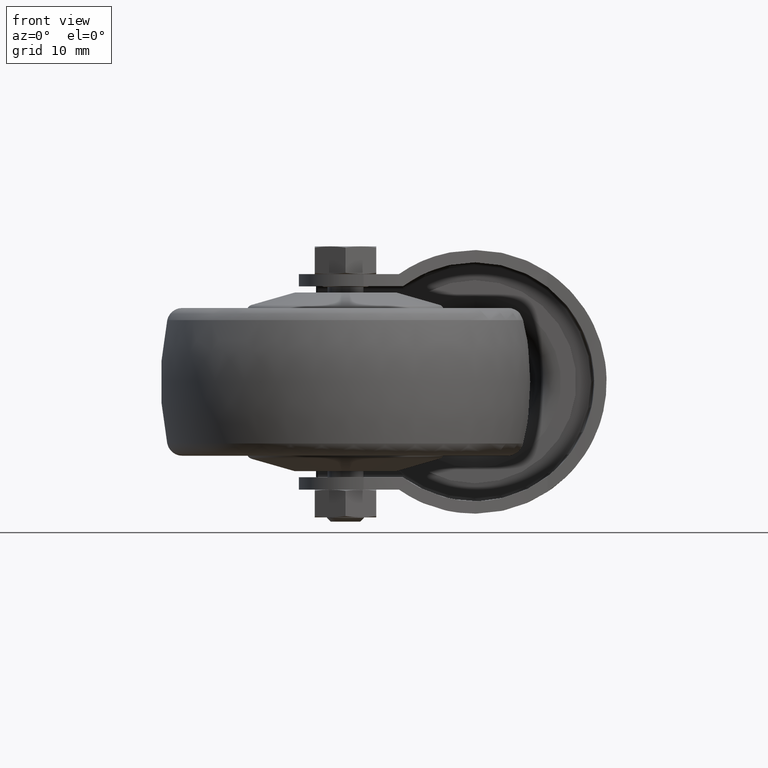
[diagram: clean part render]
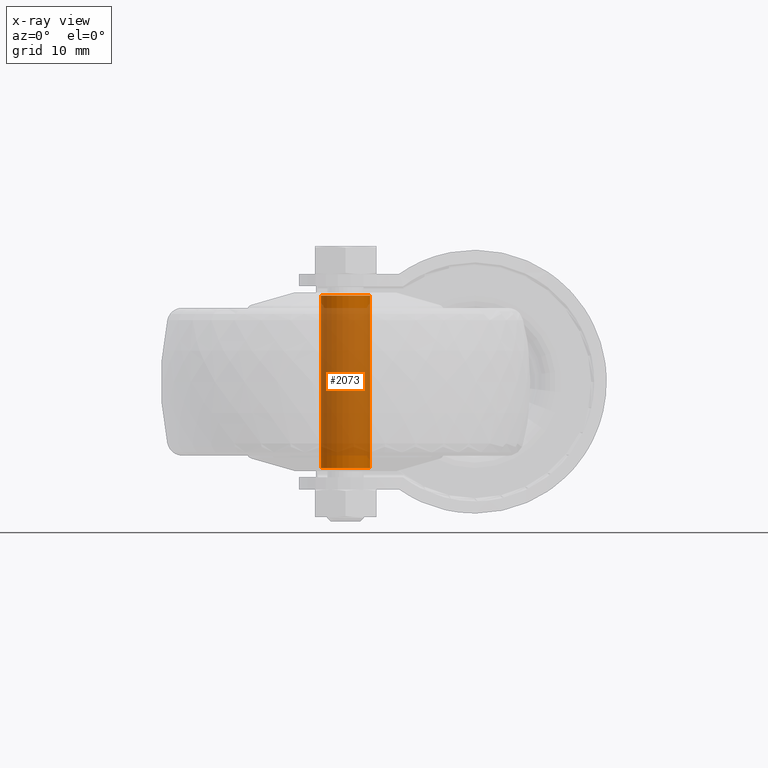
[diagram: x-ray — body ghosted, one internal face saturated and labeled with its STEP entity id]
A machine part, front view, then the same camera in x-ray: the body is ghosted and one INTERNAL B-rep face — a face not visible from any outside direction — is saturated and labeled: STEP entity #2073.
In plain terms, the highlighted cylindrical surface (bore or boss wall) has radius 4 mm, axis along (0, 0, -1).
Its self-contained STEP definition (entity closure, byte-faithful):
#138=CYLINDRICAL_SURFACE('',#2460,4.);
#282=FACE_OUTER_BOUND('',#428,.T.);
#428=EDGE_LOOP('',(#1403,#1404,#1405,#1406));
#600=LINE('',#3495,#679);
#679=VECTOR('',#2791,4.);
#761=CIRCLE('',#2459,4.);
#762=CIRCLE('',#2461,4.);
#905=VERTEX_POINT('',#3490);
#906=VERTEX_POINT('',#3493);
#1094=EDGE_CURVE('',#905,#905,#761,.T.);
#1095=EDGE_CURVE('',#906,#906,#762,.T.);
#1096=EDGE_CURVE('',#906,#905,#600,.T.);
#1403=ORIENTED_EDGE('',*,*,#1095,.T.);
#1404=ORIENTED_EDGE('',*,*,#1096,.T.);
#1405=ORIENTED_EDGE('',*,*,#1094,.F.);
#1406=ORIENTED_EDGE('',*,*,#1096,.F.);
#2073=ADVANCED_FACE('',(#282),#138,.F.);
#2459=AXIS2_PLACEMENT_3D('',#3491,#2785,#2786);
#2460=AXIS2_PLACEMENT_3D('',#3492,#2787,#2788);
#2461=AXIS2_PLACEMENT_3D('',#3494,#2789,#2790);
#2785=DIRECTION('center_axis',(1.,0.,0.));
#2786=DIRECTION('ref_axis',(0.,0.,-1.));
#2787=DIRECTION('center_axis',(-1.,0.,0.));
#2788=DIRECTION('ref_axis',(0.,0.,-1.));
#2789=DIRECTION('center_axis',(1.,0.,0.));
#2790=DIRECTION('ref_axis',(0.,0.,-1.));
#2791=DIRECTION('',(-1.,0.,0.));
#3490=CARTESIAN_POINT('',(0.,4.89858719658941E-16,4.));
#3491=CARTESIAN_POINT('Origin',(0.,0.,0.));
#3492=CARTESIAN_POINT('Origin',(28.,0.,0.));
#3493=CARTESIAN_POINT('',(28.,4.89858719658941E-16,4.));
#3494=CARTESIAN_POINT('Origin',(28.,0.,0.));
#3495=CARTESIAN_POINT('',(28.,4.89858719658941E-16,4.));